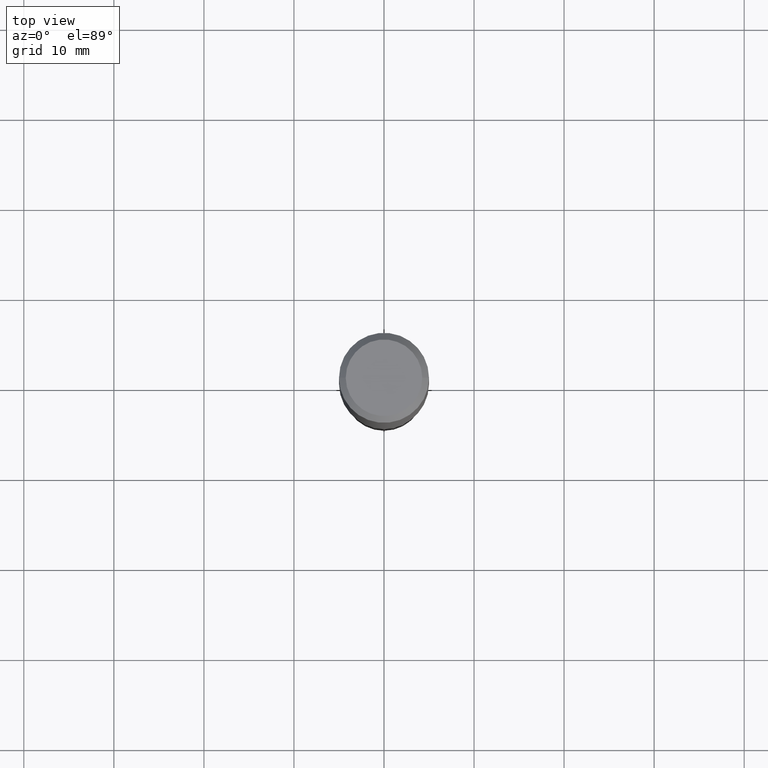
[diagram: clean part render]
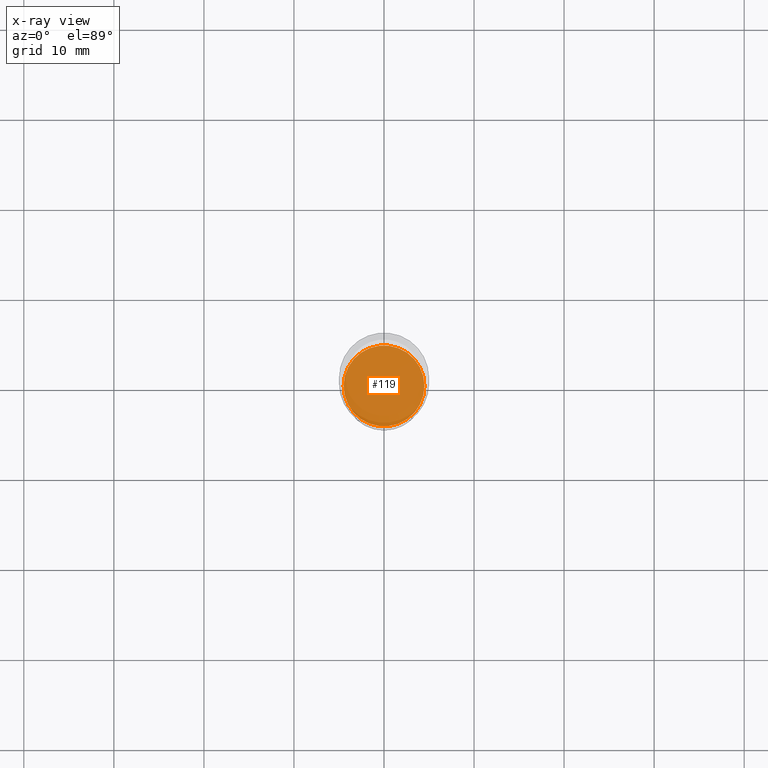
[diagram: x-ray — body ghosted, one internal face saturated and labeled with its STEP entity id]
A machine part, top view, then the same camera in x-ray: the body is ghosted and one INTERNAL B-rep face — a face not visible from any outside direction — is saturated and labeled: STEP entity #119.
In plain terms, the highlighted planar face has unit normal (-0, 0, 1).
Its self-contained STEP definition (entity closure, byte-faithful):
#8 = AXIS2_PLACEMENT_3D ( 'NONE', #282, #397, #55 ) ;
#51 = CIRCLE ( 'NONE', #190, 0.1766500000000000015 ) ;
#55 = DIRECTION ( 'NONE',  ( 1.000000000000000000, -6.982962677686265922E-15, 4.876176775795935793E-29 ) ) ;
#119 = ADVANCED_FACE ( 'NONE', ( #255 ), #400, .F. ) ;
#143 = VERTEX_POINT ( 'NONE', #159 ) ;
#146 = CARTESIAN_POINT ( 'NONE',  ( -0.1766500000000000015, -6.013536066380407395E-15, -2.082600000000000229 ) ) ;
#159 = CARTESIAN_POINT ( 'NONE',  ( 0.1766500000000000015, -8.504899393288014774E-15, -2.082600000000000229 ) ) ;
#167 = EDGE_LOOP ( 'NONE', ( #231, #425 ) ) ;
#172 = VERTEX_POINT ( 'NONE', #146 ) ;
#190 = AXIS2_PLACEMENT_3D ( 'NONE', #283, #391, #322 ) ;
#224 = CIRCLE ( 'NONE', #386, 0.1766500000000000015 ) ;
#231 = ORIENTED_EDGE ( 'NONE', *, *, #438, .F. ) ;
#255 = FACE_OUTER_BOUND ( 'NONE', #167, .T. ) ;
#268 = DIRECTION ( 'NONE',  ( 1.000000000000000000, -6.982962677686269866E-15, 0.000000000000000000 ) ) ;
#282 = CARTESIAN_POINT ( 'NONE',  ( 5.092933335761166106E-29, -7.271359036274735388E-15, -2.082600000000000229 ) ) ;
#283 = CARTESIAN_POINT ( 'NONE',  ( 5.092933335761166106E-29, -7.271359036274735388E-15, -2.082600000000000229 ) ) ;
#313 = EDGE_CURVE ( 'NONE', #172, #143, #224, .T. ) ;
#322 = DIRECTION ( 'NONE',  ( 1.000000000000000000, -6.982962677686269866E-15, 0.000000000000000000 ) ) ;
#386 = AXIS2_PLACEMENT_3D ( 'NONE', #442, #437, #268 ) ;
#391 = DIRECTION ( 'NONE',  ( -2.445468806185136597E-29, 3.491481338843145583E-15, 1.000000000000000000 ) ) ;
#397 = DIRECTION ( 'NONE',  ( -2.438088387897960049E-29, 3.491481338843145188E-15, 1.000000000000000000 ) ) ;
#400 = PLANE ( 'NONE',  #8 ) ;
#425 = ORIENTED_EDGE ( 'NONE', *, *, #313, .F. ) ;
#437 = DIRECTION ( 'NONE',  ( -2.445468806185136597E-29, 3.491481338843145583E-15, 1.000000000000000000 ) ) ;
#438 = EDGE_CURVE ( 'NONE', #143, #172, #51, .T. ) ;
#442 = CARTESIAN_POINT ( 'NONE',  ( 5.092933335761166106E-29, -7.271359036274735388E-15, -2.082600000000000229 ) ) ;